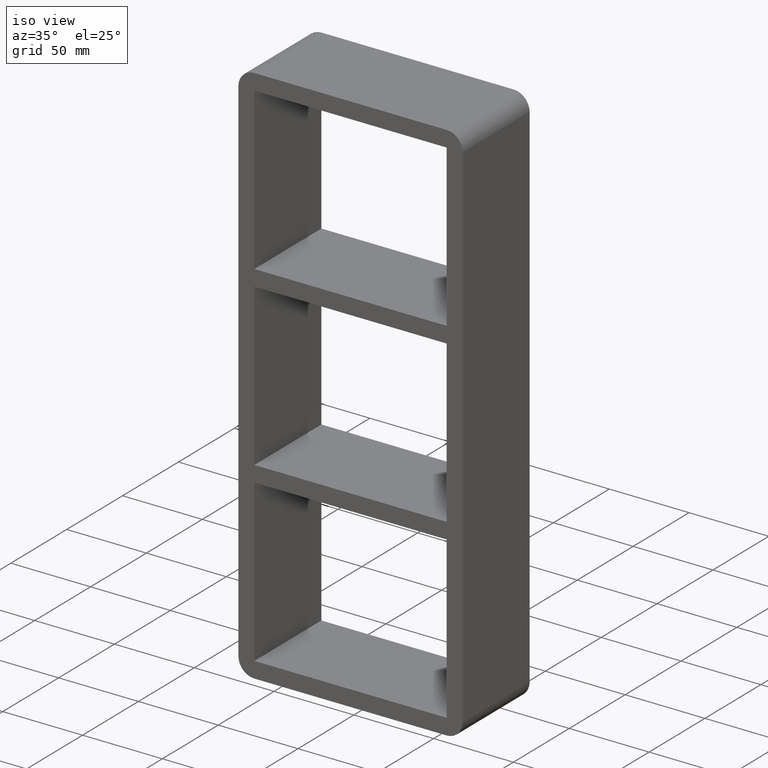
[diagram: clean part render]
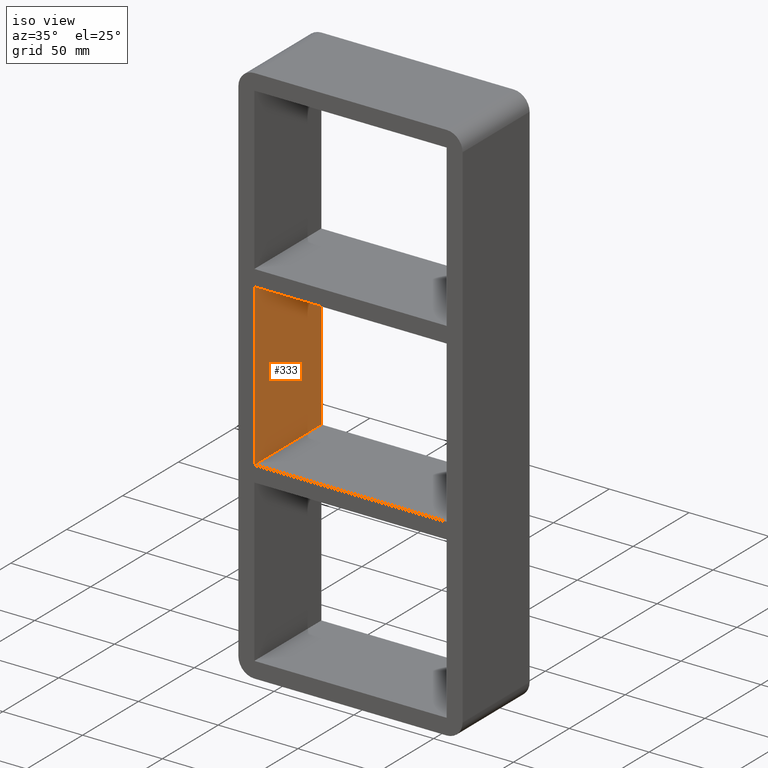
[diagram: same view with one face highlighted and labeled with its STEP entity id]
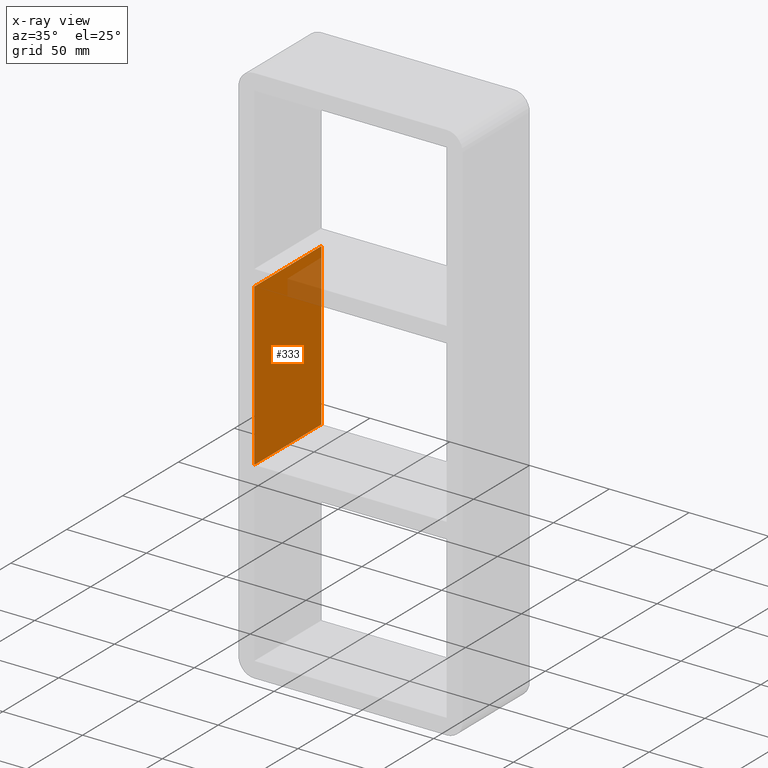
[diagram: x-ray of the same camera — body ghosted, the highlighted face saturated]
A machine part, iso view. The second image highlights one B-rep face of the part: STEP entity #333.
The next image is the same camera in x-ray: the body ghosted, the highlighted face saturated — about 9% of this face is hidden behind the body in this view.
In plain terms, the highlighted planar face has unit normal (-1, 0, 0).
Its self-contained STEP definition (entity closure, byte-faithful):
#75=CARTESIAN_POINT('',(-60.249999999999645,-3.0,50.499999999990521));
#76=VERTEX_POINT('',#75);
#83=CARTESIAN_POINT('',(-60.249999999999645,57.0,50.499999999990521));
#84=VERTEX_POINT('',#83);
#85=CARTESIAN_POINT('',(-60.250000000000014,57.000000000000007,50.499999999990521));
#86=DIRECTION('',(0.0,-1.0,0.0));
#87=VECTOR('',#86,60.000000000000007);
#88=LINE('',#85,#87);
#89=EDGE_CURVE('',#84,#76,#88,.T.);
#286=CARTESIAN_POINT('',(-60.249999999999645,-3.0,-50.500000000000114));
#287=VERTEX_POINT('',#286);
#295=CARTESIAN_POINT('',(-60.249999999999645,57.0,-50.500000000000114));
#296=VERTEX_POINT('',#295);
#303=CARTESIAN_POINT('',(-60.250000000000014,-3.0,-50.500000000000114));
#304=DIRECTION('',(0.0,1.0,0.0));
#305=VECTOR('',#304,60.000000000000007);
#306=LINE('',#303,#305);
#307=EDGE_CURVE('',#287,#296,#306,.T.);
#312=CARTESIAN_POINT('',(-60.250000000000014,0.0,-161.50000000000003));
#313=DIRECTION('',(-1.0,0.0,0.0));
#314=DIRECTION('',(0.0,0.0,1.0));
#315=AXIS2_PLACEMENT_3D('',#312,#313,#314);
#316=PLANE('',#315);
#317=ORIENTED_EDGE('',*,*,#89,.T.);
#318=CARTESIAN_POINT('',(-60.250000000000014,-3.0,-50.500000000000114));
#319=DIRECTION('',(0.0,0.0,1.0));
#320=VECTOR('',#319,100.99999999999064);
#321=LINE('',#318,#320);
#322=EDGE_CURVE('',#287,#76,#321,.T.);
#323=ORIENTED_EDGE('',*,*,#322,.F.);
#324=ORIENTED_EDGE('',*,*,#307,.T.);
#325=CARTESIAN_POINT('',(-60.250000000000014,57.0,50.499999999990521));
#326=DIRECTION('',(0.0,0.0,-1.0));
#327=VECTOR('',#326,100.99999999999064);
#328=LINE('',#325,#327);
#329=EDGE_CURVE('',#84,#296,#328,.T.);
#330=ORIENTED_EDGE('',*,*,#329,.F.);
#331=EDGE_LOOP('',(#317,#323,#324,#330));
#332=FACE_OUTER_BOUND('',#331,.T.);
#333=ADVANCED_FACE('',(#332),#316,.F.);